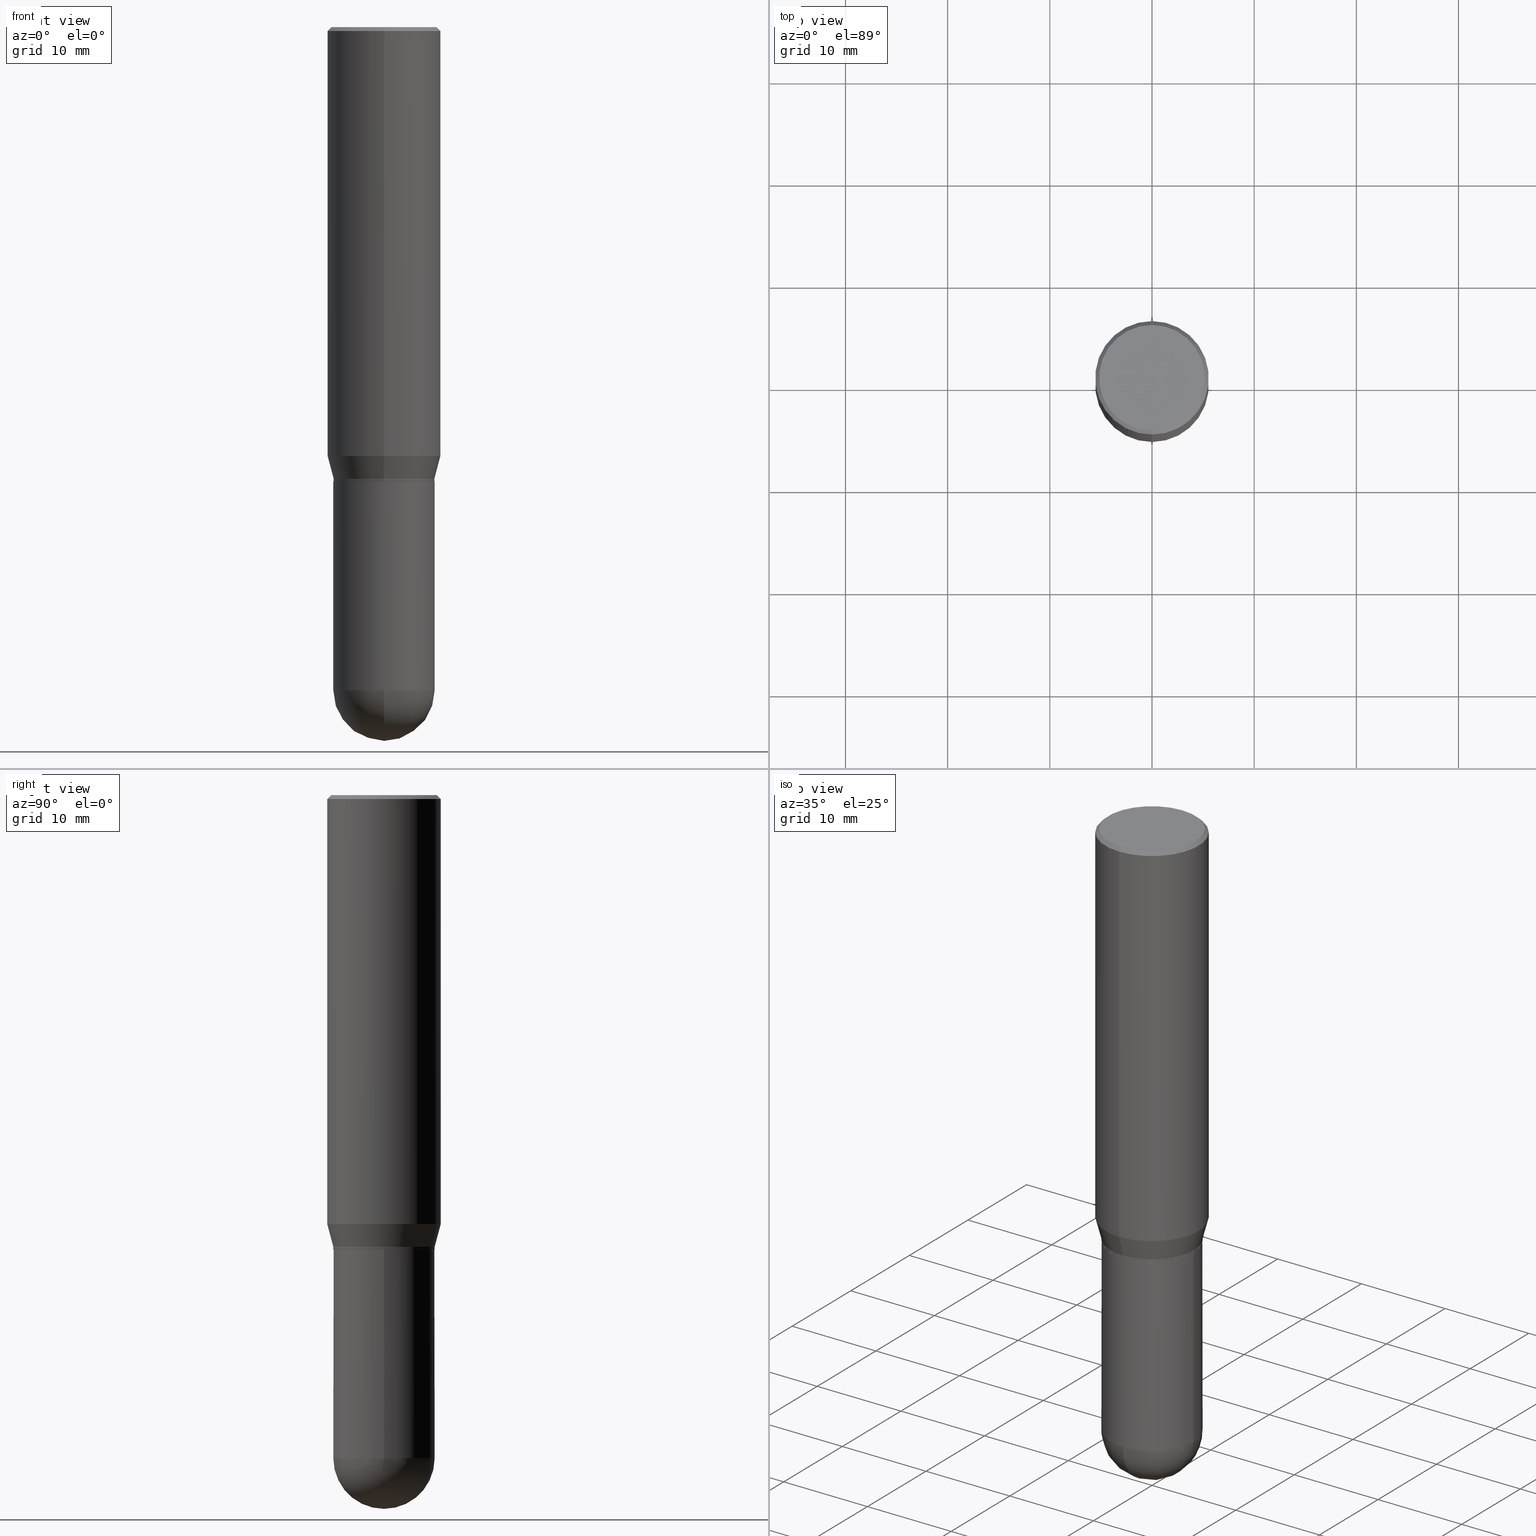
[diagram: canonical four-view strip — front | top / right | iso, engineering-drawing reading convention]
A machine part, canonical four-view strip (front | top / right | iso — engineering-drawing reading convention). The complete STEP part file that produces these views, byte-faithful:
ISO-10303-21;
HEADER;
FILE_DESCRIPTION (( 'STEP AP203' ),
    '1' );
FILE_NAME ('30495.STEP',
    '2024-03-08T15:27:21',
    ( '' ),
    ( '' ),
    'SwSTEP 2.0',
    'SolidWorks 2023',
    '' );
FILE_SCHEMA (( 'CONFIG_CONTROL_DESIGN' ));
ENDSEC;

DATA;
#1 = ORIENTED_EDGE ( 'NONE', *, *, #378, .T. ) ;
#2 = CARTESIAN_POINT ( 'NONE',  ( 4.279500515677457004E-29, -6.110192436803521757E-15, -1.750000000000000000 ) ) ;
#3 = ORIENTED_EDGE ( 'NONE', *, *, #456, .T. ) ;
#4 = DIRECTION ( 'NONE',  ( -2.445428866101404443E-29, 3.491538535316298316E-15, 1.000000000000000000 ) ) ;
#5 = CARTESIAN_POINT ( 'NONE',  ( 0.000000000000000000, 0.000000000000000000, 0.000000000000000000 ) ) ;
#6 = LINE ( 'NONE', #323, #494 ) ;
#7 = CIRCLE ( 'NONE', #188, 0.1948000000000000287 ) ;
#8 = ORIENTED_EDGE ( 'NONE', *, *, #237, .F. ) ;
#9 = CARTESIAN_POINT ( 'NONE',  ( 4.279570410823988484E-29, -6.110092342975504671E-15, -1.750000000000000000 ) ) ;
#10 = CARTESIAN_POINT ( 'NONE',  ( -1.363772610952084702E-15, -0.1953000000000059688, -1.739999999999999547 ) ) ;
#11 = ORIENTED_EDGE ( 'NONE', *, *, #91, .F. ) ;
#12 = LINE ( 'NONE', #368, #93 ) ;
#13 = EDGE_CURVE ( 'NONE', #433, #212, #389, .T. ) ;
#14 = CARTESIAN_POINT ( 'NONE',  ( 4.278277801244407626E-29, -6.108446667535864278E-15, -1.749500000000000055 ) ) ;
#15 = ORIENTED_EDGE ( 'NONE', *, *, #348, .F. ) ;
#16 = ORGANIZATION ( 'UNSPECIFIED', 'UNSPECIFIED', '' ) ;
#17 = AXIS2_PLACEMENT_3D ( 'NONE', #477, #331, #291 ) ;
#18 = CARTESIAN_POINT ( 'NONE',  ( 0.000000000000000000, 0.000000000000000000, 0.000000000000000000 ) ) ;
#19 = DIRECTION ( 'NONE',  ( -4.937700262164715281E-15, -0.7071067811865691111, 0.7071067811865257013 ) ) ;
#20 = ADVANCED_FACE ( 'NONE', ( #328 ), #53, .T. ) ;
#21 = ORIENTED_EDGE ( 'NONE', *, *, #136, .T. ) ;
#22 = PLANE ( 'NONE',  #462 ) ;
#23 = CARTESIAN_POINT ( 'NONE',  ( -0.1953000000000000291, -6.127199896719567549E-15, -1.750000000000000000 ) ) ;
#24 = EDGE_CURVE ( 'NONE', #320, #435, #260, .T. ) ;
#25 = DIRECTION ( 'NONE',  ( -7.105427357601001070E-15, -1.000000000000000000, 0.000000000000000000 ) ) ;
#26 = PERSON_AND_ORGANIZATION ( #275, #16 ) ;
#27 = CYLINDRICAL_SURFACE ( 'NONE', #461, 0.1952999999999999181 ) ;
#28 = DIRECTION ( 'NONE',  ( -2.445428866101404443E-29, 3.491538535316298316E-15, 1.000000000000000000 ) ) ;
#29 = PRODUCT ( '30495', '30495', '', ( #202 ) ) ;
#30 = FACE_OUTER_BOUND ( 'NONE', #284, .T. ) ;
#31 = APPROVAL_ROLE ( '' ) ;
#32 = CIRCLE ( 'NONE', #396, 0.1953000000000000569 ) ;
#33 = CARTESIAN_POINT ( 'NONE',  ( 6.252116918762979989E-29, -8.912988558351247541E-15, -2.554699999999999971 ) ) ;
#34 = EDGE_CURVE ( 'NONE', #212, #363, #67, .T. ) ;
#35 = ORIENTED_EDGE ( 'NONE', *, *, #411, .T. ) ;
#36 = DIRECTION ( 'NONE',  ( -2.445428866101404443E-29, 3.491538535316298316E-15, 1.000000000000000000 ) ) ;
#37 = VERTEX_POINT ( 'NONE', #159 ) ;
#38 = AXIS2_PLACEMENT_3D ( 'NONE', #2, #282, #245 ) ;
#39 = EDGE_CURVE ( 'NONE', #480, #177, #12, .T. ) ;
#40 = AXIS2_PLACEMENT_3D ( 'NONE', #9, #49, #131 ) ;
#41 = ORIENTED_EDGE ( 'NONE', *, *, #411, .F. ) ;
#42 = DIRECTION ( 'NONE',  ( 1.839019923739601499E-15, 0.2588190451025251249, 0.9659258262890670910 ) ) ;
#43 = DIRECTION ( 'NONE',  ( 6.982962677686265133E-15, 1.000000000000000000, -3.492862791899308071E-15 ) ) ;
#44 = ORIENTED_EDGE ( 'NONE', *, *, #336, .F. ) ;
#45 = ORIENTED_EDGE ( 'NONE', *, *, #116, .T. ) ;
#46 = CARTESIAN_POINT ( 'NONE',  ( 1.387689962939474884E-15, 0.1952999999999999181, -6.818974759472728110E-16 ) ) ;
#47 = CARTESIAN_POINT ( 'NONE',  ( 6.738067675424772833E-29, -9.582916187833640258E-15, -2.750000000000000000 ) ) ;
#48 = AXIS2_PLACEMENT_3D ( 'NONE', #142, #112, #301 ) ;
#49 = DIRECTION ( 'NONE',  ( -2.445468806185136597E-29, 3.491481338843145583E-15, 1.000000000000000000 ) ) ;
#50 = EDGE_CURVE ( 'NONE', #212, #433, #380, .T. ) ;
#51 = PRODUCT_DEFINITION ( 'UNKNOWN', '', #369, #129 ) ;
#52 = ORIENTED_EDGE ( 'NONE', *, *, #296, .F. ) ;
#53 = CYLINDRICAL_SURFACE ( 'NONE', #145, 0.1953000000000000291 ) ;
#54 = VECTOR ( 'NONE', #158, 39.37007874015748143 ) ;
#55 = DIRECTION ( 'NONE',  ( 6.982962677686265922E-15, 1.000000000000000000, -3.491538535316297921E-15 ) ) ;
#56 = AXIS2_PLACEMENT_3D ( 'NONE', #488, #78, #358 ) ;
#57 = AXIS2_PLACEMENT_3D ( 'NONE', #88, #256, #327 ) ;
#58 = CARTESIAN_POINT ( 'NONE',  ( -1.363772610952085885E-15, -0.1953000000000062186, -1.749499999999999389 ) ) ;
#59 = DIRECTION ( 'NONE',  ( 2.445428866101404443E-29, -3.491538535316298316E-15, -1.000000000000000000 ) ) ;
#60 = DIRECTION ( 'NONE',  ( -1.000000000000000000, 6.982962677686265922E-15, -4.876176775795935793E-29 ) ) ;
#61 = APPROVAL_PERSON_ORGANIZATION ( #493, #200, #151 ) ;
#62 = EDGE_CURVE ( 'NONE', #288, #221, #70, .T. ) ;
#63 = PERSON_AND_ORGANIZATION ( #275, #16 ) ;
#64 = CARTESIAN_POINT ( 'NONE',  ( 0.000000000000000000, 0.000000000000000000, 0.000000000000000000 ) ) ;
#65 = DIRECTION ( 'NONE',  ( 0.000000000000000000, 0.000000000000000000, 1.000000000000000000 ) ) ;
#66 = EDGE_CURVE ( 'NONE', #435, #320, #463, .T. ) ;
#67 = LINE ( 'NONE', #506, #317 ) ;
#68 = FACE_OUTER_BOUND ( 'NONE', #412, .T. ) ;
#69 = AXIS2_PLACEMENT_3D ( 'NONE', #257, #385, #150 ) ;
#70 = CIRCLE ( 'NONE', #17, 0.1953000000000000291 ) ;
#71 = SECURITY_CLASSIFICATION ( '', '', #311 ) ;
#72 = ORIENTED_EDGE ( 'NONE', *, *, #192, .F. ) ;
#73 = ORIENTED_EDGE ( 'NONE', *, *, #164, .T. ) ;
#74 = LENGTH_MEASURE_WITH_UNIT ( LENGTH_MEASURE( 0.02539999999999999897 ), #272 );
#75 = CARTESIAN_POINT ( 'NONE',  ( 0.1953000000000000291, -1.363772610952128089E-15, 9.523173243129463579E-30 ) ) ;
#76 = EDGE_CURVE ( 'NONE', #242, #177, #346, .T. ) ;
#77 = ORIENTED_EDGE ( 'NONE', *, *, #290, .F. ) ;
#78 = DIRECTION ( 'NONE',  ( -2.445428866101404443E-29, 3.491538535316298316E-15, 1.000000000000000000 ) ) ;
#79 = LINE ( 'NONE', #46, #264 ) ;
#80 = CC_DESIGN_DATE_AND_TIME_ASSIGNMENT ( #376, #190, ( #51 ) ) ;
#81 = LOCAL_TIME ( 10, 27, 21.00000000000000000, #233 ) ;
#82 = CLOSED_SHELL ( 'NONE', ( #309, #234, #170, #485, #20 ) ) ;
#83 = EDGE_LOOP ( 'NONE', ( #97, #468, #476, #100 ) ) ;
#84 = DIRECTION ( 'NONE',  ( -6.982962677686265922E-15, -1.000000000000000000, 2.797591391361253165E-15 ) ) ;
#85 = CYLINDRICAL_SURFACE ( 'NONE', #120, 0.1952999999999999181 ) ;
#86 = DIRECTION ( 'NONE',  ( 4.937700262164548831E-15, 0.7071067811865452413, -0.7071067811865497932 ) ) ;
#87 = ORIENTED_EDGE ( 'NONE', *, *, #438, .T. ) ;
#88 = CARTESIAN_POINT ( 'NONE',  ( 4.255046227016444789E-29, -6.075277051450358762E-15, -1.739999999999999991 ) ) ;
#89 = DIRECTION ( 'NONE',  ( -4.851104656540965064E-15, -0.7071067811865501263, -0.7071067811865449082 ) ) ;
#90 = ORIENTED_EDGE ( 'NONE', *, *, #34, .T. ) ;
#91 = EDGE_CURVE ( 'NONE', #168, #433, #183, .T. ) ;
#92 = DIRECTION ( 'NONE',  ( -6.982962677686265133E-15, -1.000000000000000000, 3.491538535316298316E-15 ) ) ;
#93 = VECTOR ( 'NONE', #261, 39.37007874015748143 ) ;
#94 = DIRECTION ( 'NONE',  ( -2.445428866101404443E-29, 3.491538535316298316E-15, 1.000000000000000000 ) ) ;
#95 = CC_DESIGN_PERSON_AND_ORGANIZATION_ASSIGNMENT ( #26, #194, ( #51 ) ) ;
#96 = ORIENTED_EDGE ( 'NONE', *, *, #192, .T. ) ;
#97 = ORIENTED_EDGE ( 'NONE', *, *, #66, .F. ) ;
#98 = LINE ( 'NONE', #371, #231 ) ;
#99 = CARTESIAN_POINT ( 'NONE',  ( 4.041030628052402903E-29, -5.769709499966830493E-15, -1.652483408562509748 ) ) ;
#100 = ORIENTED_EDGE ( 'NONE', *, *, #250, .F. ) ;
#101 = CYLINDRICAL_SURFACE ( 'NONE', #209, 0.2187500000000000000 ) ;
#102 = COORDINATED_UNIVERSAL_TIME_OFFSET ( 5, 0, .BEHIND. ) ;
#103 = DIRECTION ( 'NONE',  ( -2.445428866101404443E-29, 3.491538535316297921E-15, 1.000000000000000000 ) ) ;
#104 = MANIFOLD_SOLID_BREP ( 'Body-Move/Copy2[1]', #82 ) ;
#105 = EDGE_CURVE ( 'NONE', #126, #324, #370, .T. ) ;
#106 = CARTESIAN_POINT ( 'NONE',  ( 1.387689962939516891E-15, 0.1952999999999937009, -1.749500000000000499 ) ) ;
#107 = CARTESIAN_POINT ( 'NONE',  ( 1.384137249260717767E-15, 0.1947999999999939225, -1.750000000000000444 ) ) ;
#108 = APPROVAL_ROLE ( '' ) ;
#109 = AXIS2_PLACEMENT_3D ( 'NONE', #140, #382, #193 ) ;
#110 = LOCAL_TIME ( 10, 27, 21.00000000000000000, #199 ) ;
#111 = CYLINDRICAL_SURFACE ( 'NONE', #434, 0.1953000000000000291 ) ;
#112 = DIRECTION ( 'NONE',  ( -2.445428866101404443E-29, 3.491538535316298316E-15, 1.000000000000000000 ) ) ;
#113 = ADVANCED_FACE ( 'NONE', ( #401 ), #286, .T. ) ;
#114 = CARTESIAN_POINT ( 'NONE',  ( 3.668143299152134304E-31, -5.237307802974486843E-17, -0.01500000000000011394 ) ) ;
#115 = APPROVAL_DATE_TIME ( #464, #200 ) ;
#116 = EDGE_CURVE ( 'NONE', #168, #508, #425, .T. ) ;
#117 = CALENDAR_DATE ( 2024, 8, 3 ) ;
#118 = CARTESIAN_POINT ( 'NONE',  ( 6.247439159161168638E-29, -8.919687376342582955E-15, -2.554699999999999971 ) ) ;
#119 = CARTESIAN_POINT ( 'NONE',  ( 1.385913606100117822E-15, 0.1947999999999939225, -1.750000000000000444 ) ) ;
#120 = AXIS2_PLACEMENT_3D ( 'NONE', #5, #169, #325 ) ;
#121 = VERTEX_POINT ( 'NONE', #440 ) ;
#122 = ADVANCED_FACE ( 'NONE', ( #173 ), #146, .T. ) ;
#123 = ORIENTED_EDGE ( 'NONE', *, *, #206, .F. ) ;
#124 = ADVANCED_FACE ( 'NONE', ( #481 ), #204, .T. ) ;
#125 = APPLICATION_CONTEXT ( 'configuration controlled 3d designs of mechanical parts and assemblies' ) ;
#126 = VERTEX_POINT ( 'NONE', #418 ) ;
#127 = ADVANCED_BREP_SHAPE_REPRESENTATION ( '30495', ( #104, #436, #163 ), #217 ) ;
#128 = AXIS2_PLACEMENT_3D ( 'NONE', #160, #59, #377 ) ;
#129 = DESIGN_CONTEXT ( 'detailed design', #125, 'design' ) ;
#130 = VERTEX_POINT ( 'NONE', #263 ) ;
#131 = DIRECTION ( 'NONE',  ( 1.000000000000000000, -6.982962677686267499E-15, 0.000000000000000000 ) ) ;
#132 = CARTESIAN_POINT ( 'NONE',  ( 1.554312234475259191E-15, 0.2187499999999998890, -0.01500000000000087721 ) ) ;
#133 = ORIENTED_EDGE ( 'NONE', *, *, #62, .F. ) ;
#134 = AXIS2_PLACEMENT_3D ( 'NONE', #99, #340, #297 ) ;
#135 = LOCAL_TIME ( 10, 27, 21.00000000000000000, #144 ) ;
#136 = EDGE_CURVE ( 'NONE', #288, #121, #373, .T. ) ;
#137 = VERTEX_POINT ( 'NONE', #375 ) ;
#138 = CARTESIAN_POINT ( 'NONE',  ( 4.279500515677457004E-29, -6.110192436803521757E-15, -1.750000000000000000 ) ) ;
#139 = DIRECTION ( 'NONE',  ( -6.982962677686266711E-15, -1.000000000000000000, 2.804772067417107719E-15 ) ) ;
#140 = CARTESIAN_POINT ( 'NONE',  ( 6.247439159161168638E-29, -8.919687376342582955E-15, -2.554699999999999971 ) ) ;
#141 = EDGE_LOOP ( 'NONE', ( #391, #255, #399, #15 ) ) ;
#142 = CARTESIAN_POINT ( 'NONE',  ( 4.279500515677457004E-29, -6.110192436803521757E-15, -1.750000000000000000 ) ) ;
#143 = PLANE ( 'NONE',  #247 ) ;
#144 = COORDINATED_UNIVERSAL_TIME_OFFSET ( 5, 0, .BEHIND. ) ;
#145 = AXIS2_PLACEMENT_3D ( 'NONE', #18, #337, #289 ) ;
#146 = CONICAL_SURFACE ( 'NONE', #57, 0.1952999999999998904, 0.2617993877991504625 ) ;
#147 = CARTESIAN_POINT ( 'NONE',  ( 1.554312234475218762E-15, 0.2187500000000000000, -7.637740546004402196E-16 ) ) ;
#148 = CARTESIAN_POINT ( 'NONE',  ( 4.279500515677457004E-29, -6.110192436803521757E-15, -1.750000000000000000 ) ) ;
#149 = DIRECTION ( 'NONE',  ( -6.982962677686265133E-15, -1.000000000000000000, 3.746534391310989557E-15 ) ) ;
#150 = DIRECTION ( 'NONE',  ( -6.982962677686265133E-15, -1.000000000000000000, 3.492862791899308071E-15 ) ) ;
#151 = APPROVAL_ROLE ( '' ) ;
#152 = AXIS2_PLACEMENT_3D ( 'NONE', #362, #509, #43 ) ;
#153 = CARTESIAN_POINT ( 'NONE',  ( -1.527523085743870449E-15, -0.2187500000000000000, 7.637740546004402196E-16 ) ) ;
#154 = COORDINATED_UNIVERSAL_TIME_OFFSET ( 5, 0, .BEHIND. ) ;
#155 = AXIS2_PLACEMENT_3D ( 'NONE', #338, #184, #25 ) ;
#156 = FACE_OUTER_BOUND ( 'NONE', #431, .T. ) ;
#157 = AXIS2_PLACEMENT_3D ( 'NONE', #343, #492, #187 ) ;
#158 = DIRECTION ( 'NONE',  ( -2.445428866101404162E-29, 3.491538535316297921E-15, 1.000000000000000000 ) ) ;
#159 = CARTESIAN_POINT ( 'NONE',  ( -1.527523085743830414E-15, -0.2187500000000058009, -1.652483408562509082 ) ) ;
#160 = CARTESIAN_POINT ( 'NONE',  ( 3.668143299152134304E-31, -5.237307802974486843E-17, -0.01500000000000011394 ) ) ;
#161 = ORIENTED_EDGE ( 'NONE', *, *, #378, .F. ) ;
#162 = APPLICATION_CONTEXT ( 'configuration controlled 3d designs of mechanical parts and assemblies' ) ;
#163 = AXIS2_PLACEMENT_3D ( 'NONE', #271, #65, #383 ) ;
#164 = EDGE_CURVE ( 'NONE', #121, #137, #254, .T. ) ;
#165 = ORIENTED_EDGE ( 'NONE', *, *, #483, .F. ) ;
#166 = DIRECTION ( 'NONE',  ( -2.445468806185136877E-29, 3.491481338843145188E-15, 1.000000000000000000 ) ) ;
#167 = ORIENTED_EDGE ( 'NONE', *, *, #197, .T. ) ;
#168 = VERTEX_POINT ( 'NONE', #58 ) ;
#169 = DIRECTION ( 'NONE',  ( -2.445428866101404443E-29, 3.491538535316298316E-15, 1.000000000000000000 ) ) ;
#170 = ADVANCED_FACE ( 'NONE', ( #339 ), #143, .F. ) ;
#171 = AXIS2_PLACEMENT_3D ( 'NONE', #420, #448, #270 ) ;
#172 = ORIENTED_EDGE ( 'NONE', *, *, #483, .T. ) ;
#173 = FACE_OUTER_BOUND ( 'NONE', #224, .T. ) ;
#174 = CARTESIAN_POINT ( 'NONE',  ( 4.041030628052402903E-29, -5.769709499966830493E-15, -1.652483408562509748 ) ) ;
#175 = CC_DESIGN_PERSON_AND_ORGANIZATION_ASSIGNMENT ( #240, #344, ( #369 ) ) ;
#176 = DIRECTION ( 'NONE',  ( -6.982962677686266711E-15, -1.000000000000000000, 2.797591391361254348E-15 ) ) ;
#177 = VERTEX_POINT ( 'NONE', #23 ) ;
#178 = ADVANCED_FACE ( 'NONE', ( #457 ), #189, .F. ) ;
#179 = VECTOR ( 'NONE', #306, 39.37007874015748143 ) ;
#180 = CIRCLE ( 'NONE', #398, 0.1952999999999999736 ) ;
#181 = CC_DESIGN_APPROVAL ( #200, ( #369 ) ) ;
#182 = ADVANCED_FACE ( 'NONE', ( #232 ), #27, .T. ) ;
#183 = LINE ( 'NONE', #335, #333 ) ;
#184 = DIRECTION ( 'NONE',  ( -1.000000000000000000, 7.105427357601001070E-15, -4.926315508542082329E-29 ) ) ;
#185 = ORIENTED_EDGE ( 'NONE', *, *, #305, .F. ) ;
#186 = CARTESIAN_POINT ( 'NONE',  ( 4.278277801244407626E-29, -6.108446667535864278E-15, -1.749500000000000055 ) ) ;
#187 = DIRECTION ( 'NONE',  ( 1.000000000000000000, -6.982962677686266711E-15, 0.000000000000000000 ) ) ;
#188 = AXIS2_PLACEMENT_3D ( 'NONE', #228, #36, #139 ) ;
#189 = PLANE ( 'NONE',  #487 ) ;
#190 = DATE_TIME_ROLE ( 'creation_date' ) ;
#191 = LINE ( 'NONE', #147, #179 ) ;
#192 = EDGE_CURVE ( 'NONE', #37, #363, #470, .T. ) ;
#193 = DIRECTION ( 'NONE',  ( 1.000000000000000000, -6.982962677686266711E-15, 0.000000000000000000 ) ) ;
#194 = PERSON_AND_ORGANIZATION_ROLE ( 'creator' ) ;
#195 = DIRECTION ( 'NONE',  ( -6.982962677686265922E-15, -1.000000000000000000, 3.491538535316297921E-15 ) ) ;
#196 = APPROVAL_DATE_TIME ( #386, #299 ) ;
#197 = EDGE_CURVE ( 'NONE', #324, #508, #295, .T. ) ;
#198 = DIRECTION ( 'NONE',  ( -2.445468806185136597E-29, 3.491481338843145583E-15, 1.000000000000000000 ) ) ;
#199 = COORDINATED_UNIVERSAL_TIME_OFFSET ( 5, 0, .BEHIND. ) ;
#200 = APPROVAL ( #342, 'UNSPECIFIED' ) ;
#201 = DIRECTION ( 'NONE',  ( -2.445428866101404443E-29, 3.491538535316298316E-15, 1.000000000000000000 ) ) ;
#202 = MECHANICAL_CONTEXT ( 'NONE', #162, 'mechanical' ) ;
#203 = DIRECTION ( 'NONE',  ( 1.000000000000000000, -6.982962677686266711E-15, 0.000000000000000000 ) ) ;
#204 = CONICAL_SURFACE ( 'NONE', #281, 0.1952999999999998904, 0.2617993877991504625 ) ;
#205 = ORIENTED_EDGE ( 'NONE', *, *, #13, .F. ) ;
#206 = EDGE_CURVE ( 'NONE', #137, #221, #310, .T. ) ;
#207 = ORIENTED_EDGE ( 'NONE', *, *, #164, .F. ) ;
#208 = DIRECTION ( 'NONE',  ( -6.982962677686265133E-15, -1.000000000000000000, 3.491538535316298316E-15 ) ) ;
#209 = AXIS2_PLACEMENT_3D ( 'NONE', #64, #387, #208 ) ;
#210 = CC_DESIGN_SECURITY_CLASSIFICATION ( #71, ( #369 ) ) ;
#211 = EDGE_CURVE ( 'NONE', #480, #121, #451, .T. ) ;
#212 = VERTEX_POINT ( 'NONE', #304 ) ;
#213 = EDGE_LOOP ( 'NONE', ( #227, #354, #73, #35, #77 ) ) ;
#214 = ADVANCED_FACE ( 'NONE', ( #498 ), #22, .F. ) ;
#215 = ORIENTED_EDGE ( 'NONE', *, *, #250, .T. ) ;
#216 = CARTESIAN_POINT ( 'NONE',  ( -1.449280202029235538E-15, -0.2037499999999999867, 5.993075674126653216E-16 ) ) ;
#217 =( GEOMETRIC_REPRESENTATION_CONTEXT ( 3 ) GLOBAL_UNCERTAINTY_ASSIGNED_CONTEXT ( ( #473 ) ) GLOBAL_UNIT_ASSIGNED_CONTEXT ( ( #243, #392, #478 ) ) REPRESENTATION_CONTEXT ( 'NONE', 'WORKASPACE' ) );
#218 = APPROVAL_PERSON_ORGANIZATION ( #63, #222, #31 ) ;
#219 = CARTESIAN_POINT ( 'NONE',  ( 4.255046227016444789E-29, -6.075277051450358762E-15, -1.739999999999999991 ) ) ;
#220 = DIRECTION ( 'NONE',  ( -2.445428866101404443E-29, 3.491538535316298316E-15, 1.000000000000000000 ) ) ;
#221 = VERTEX_POINT ( 'NONE', #307 ) ;
#222 = APPROVAL ( #239, 'UNSPECIFIED' ) ;
#223 = CARTESIAN_POINT ( 'NONE',  ( 4.255046227016444789E-29, -6.075277051450358762E-15, -1.739999999999999991 ) ) ;
#224 = EDGE_LOOP ( 'NONE', ( #512, #90, #72, #251 ) ) ;
#225 = VECTOR ( 'NONE', #479, 39.37007874015748854 ) ;
#226 = DIRECTION ( 'NONE',  ( -1.000000000000000000, 6.982962677686266711E-15, -4.883557194083112901E-29 ) ) ;
#227 = ORIENTED_EDGE ( 'NONE', *, *, #39, .F. ) ;
#228 = CARTESIAN_POINT ( 'NONE',  ( 4.279500515677457004E-29, -6.110192436803521757E-15, -1.750000000000000000 ) ) ;
#229 = DIRECTION ( 'NONE',  ( -6.982962677686266711E-15, -1.000000000000000000, 2.797591391361254348E-15 ) ) ;
#230 = DIRECTION ( 'NONE',  ( 6.982962677686266711E-15, 1.000000000000000000, -2.797591391361252376E-15 ) ) ;
#231 = VECTOR ( 'NONE', #19, 39.37007874015748854 ) ;
#232 = FACE_OUTER_BOUND ( 'NONE', #406, .T. ) ;
#233 = COORDINATED_UNIVERSAL_TIME_OFFSET ( 5, 0, .BEHIND. ) ;
#234 = ADVANCED_FACE ( 'NONE', ( #459 ), #450, .T. ) ;
#235 = DIRECTION ( 'NONE',  ( 2.438088387897960049E-29, -3.491481338843145188E-15, -1.000000000000000000 ) ) ;
#236 = PERSON_AND_ORGANIZATION ( #275, #16 ) ;
#237 = EDGE_CURVE ( 'NONE', #126, #168, #98, .T. ) ;
#238 = DIRECTION ( 'NONE',  ( -2.445428866101404443E-29, 3.491538535316298316E-15, 1.000000000000000000 ) ) ;
#239 = APPROVAL_STATUS ( 'not_yet_approved' ) ;
#240 = PERSON_AND_ORGANIZATION ( #275, #16 ) ;
#241 = CIRCLE ( 'NONE', #279, 0.1953000000000000291 ) ;
#242 = VERTEX_POINT ( 'NONE', #416 ) ;
#243 =( CONVERSION_BASED_UNIT ( 'INCH', #74 ) LENGTH_UNIT ( ) NAMED_UNIT ( #329 ) );
#244 = ORIENTED_EDGE ( 'NONE', *, *, #211, .F. ) ;
#245 = DIRECTION ( 'NONE',  ( -6.982962677686266711E-15, -1.000000000000000000, 2.804772067417107719E-15 ) ) ;
#246 = CC_DESIGN_PERSON_AND_ORGANIZATION_ASSIGNMENT ( #460, #501, ( #369 ) ) ;
#247 = AXIS2_PLACEMENT_3D ( 'NONE', #489, #235, #60 ) ;
#248 = ORIENTED_EDGE ( 'NONE', *, *, #507, .F. ) ;
#249 = CONICAL_SURFACE ( 'NONE', #128, 0.2187500000000000000, 0.7853981633974485010 ) ;
#250 = EDGE_CURVE ( 'NONE', #320, #449, #6, .T. ) ;
#251 = ORIENTED_EDGE ( 'NONE', *, *, #438, .F. ) ;
#252 = LINE ( 'NONE', #75, #345 ) ;
#253 = DIRECTION ( 'NONE',  ( 1.000000000000000000, -6.982962677686267499E-15, 0.000000000000000000 ) ) ;
#254 = CIRCLE ( 'NONE', #157, 0.1953000000000000569 ) ;
#255 = ORIENTED_EDGE ( 'NONE', *, *, #336, .T. ) ;
#256 = DIRECTION ( 'NONE',  ( -2.445428866101404443E-29, 3.491538535316298316E-15, 1.000000000000000000 ) ) ;
#257 = CARTESIAN_POINT ( 'NONE',  ( 3.668143299152134304E-31, -5.237307802974486843E-17, -0.01500000000000011394 ) ) ;
#258 = ORIENTED_EDGE ( 'NONE', *, *, #105, .T. ) ;
#259 = DIRECTION ( 'NONE',  ( -2.445428866101404162E-29, 3.491538535316297921E-15, 1.000000000000000000 ) ) ;
#260 = CIRCLE ( 'NONE', #56, 0.2037499999999999867 ) ;
#261 = DIRECTION ( 'NONE',  ( -2.445468806185136877E-29, 3.491481338843145188E-15, 1.000000000000000000 ) ) ;
#262 = DIRECTION ( 'NONE',  ( -2.445428866101404443E-29, 3.491538535316298316E-15, 1.000000000000000000 ) ) ;
#263 = CARTESIAN_POINT ( 'NONE',  ( -1.527523085743870054E-15, -0.2187500000000000555, -0.01499999999999934892 ) ) ;
#264 = VECTOR ( 'NONE', #409, 39.37007874015748143 ) ;
#265 = DIRECTION ( 'NONE',  ( 6.982962677686266711E-15, 1.000000000000000000, -2.797591391361252376E-15 ) ) ;
#266 = ORIENTED_EDGE ( 'NONE', *, *, #62, .T. ) ;
#267 = DIRECTION ( 'NONE',  ( 5.024295867788231995E-15, 0.7071067811865739960, 0.7071067811865208164 ) ) ;
#268 = APPLICATION_PROTOCOL_DEFINITION ( 'international standard', 'config_control_design', 1994, #125 ) ;
#269 = VECTOR ( 'NONE', #89, 39.37007874015748143 ) ;
#270 = DIRECTION ( 'NONE',  ( 1.000000000000000000, -6.982962677686266711E-15, 0.000000000000000000 ) ) ;
#271 = CARTESIAN_POINT ( 'NONE',  ( 0.000000000000000000, 0.000000000000000000, 0.000000000000000000 ) ) ;
#272 =( LENGTH_UNIT ( ) NAMED_UNIT ( * ) SI_UNIT ( $, .METRE. ) );
#273 = DATE_TIME_ROLE ( 'classification_date' ) ;
#274 = PERSON_AND_ORGANIZATION_ROLE ( 'classification_officer' ) ;
#275 = PERSON ( 'UNSPECIFIED', 'UNSPECIFIED', 'UNSPECIFIED', ('UNSPECIFIED'), ('UNSPECIFIED'), ('UNSPECIFIED') ) ;
#276 = DIRECTION ( 'NONE',  ( -2.445468806185136597E-29, 3.491481338843145583E-15, 1.000000000000000000 ) ) ;
#277 = EDGE_CURVE ( 'NONE', #449, #130, #422, .T. ) ;
#278 = ORIENTED_EDGE ( 'NONE', *, *, #456, .F. ) ;
#279 = AXIS2_PLACEMENT_3D ( 'NONE', #287, #276, #253 ) ;
#280 = ORIENTED_EDGE ( 'NONE', *, *, #507, .T. ) ;
#281 = AXIS2_PLACEMENT_3D ( 'NONE', #219, #366, #229 ) ;
#282 = DIRECTION ( 'NONE',  ( -2.445428866101404443E-29, 3.491538535316298316E-15, 1.000000000000000000 ) ) ;
#283 = ORIENTED_EDGE ( 'NONE', *, *, #66, .T. ) ;
#284 = EDGE_LOOP ( 'NONE', ( #172, #285, #491, #41, #372 ) ) ;
#285 = ORIENTED_EDGE ( 'NONE', *, *, #39, .T. ) ;
#286 = CYLINDRICAL_SURFACE ( 'NONE', #334, 0.2187500000000000000 ) ;
#287 = CARTESIAN_POINT ( 'NONE',  ( 4.279570410823988484E-29, -6.110092342975504671E-15, -1.750000000000000000 ) ) ;
#288 = VERTEX_POINT ( 'NONE', #47 ) ;
#289 = DIRECTION ( 'NONE',  ( 1.000000000000000000, -6.982962677686266711E-15, 4.876176775795935793E-29 ) ) ;
#290 = EDGE_CURVE ( 'NONE', #177, #242, #241, .T. ) ;
#291 = DIRECTION ( 'NONE',  ( 6.982962677686266711E-15, 1.000000000000000000, 0.000000000000000000 ) ) ;
#292 = LOCAL_TIME ( 10, 27, 21.00000000000000000, #154 ) ;
#293 = AXIS2_PLACEMENT_3D ( 'NONE', #223, #413, #443 ) ;
#294 = EDGE_LOOP ( 'NONE', ( #397, #44 ) ) ;
#295 = LINE ( 'NONE', #107, #388 ) ;
#296 = EDGE_CURVE ( 'NONE', #435, #130, #402, .T. ) ;
#297 = DIRECTION ( 'NONE',  ( -6.982962677686265133E-15, -1.000000000000000000, 3.746534391310989557E-15 ) ) ;
#298 = EDGE_LOOP ( 'NONE', ( #330, #442, #87, #278 ) ) ;
#299 = APPROVAL ( #421, 'UNSPECIFIED' ) ;
#300 = CONICAL_SURFACE ( 'NONE', #48, 0.1948000000000000287, 0.7853981633974824739 ) ;
#301 = DIRECTION ( 'NONE',  ( -6.982962677686266711E-15, -1.000000000000000000, 2.804772067417107719E-15 ) ) ;
#302 = CLOSED_SHELL ( 'NONE', ( #444, #351, #395, #353, #122, #124, #113, #490, #178, #214, #432, #182 ) ) ;
#303 = DATE_AND_TIME ( #308, #135 ) ;
#304 = CARTESIAN_POINT ( 'NONE',  ( 1.471001098707388140E-15, 0.1952999999999938119, -1.740000000000000657 ) ) ;
#305 = EDGE_CURVE ( 'NONE', #130, #449, #475, .T. ) ;
#306 = DIRECTION ( 'NONE',  ( -2.445428866101404162E-29, 3.491538535316297921E-15, 1.000000000000000000 ) ) ;
#307 = CARTESIAN_POINT ( 'NONE',  ( 1.363772610952190606E-15, 0.1952999999999911473, -2.554700000000000415 ) ) ;
#308 = CALENDAR_DATE ( 2024, 8, 3 ) ;
#309 = ADVANCED_FACE ( 'NONE', ( #30 ), #111, .T. ) ;
#310 = CIRCLE ( 'NONE', #171, 0.1953000000000000569 ) ;
#311 = SECURITY_CLASSIFICATION_LEVEL ( 'unclassified' ) ;
#312 = AXIS2_PLACEMENT_3D ( 'NONE', #138, #94, #407 ) ;
#313 = DIRECTION ( 'NONE',  ( -2.445468806185136597E-29, 3.491481338843145583E-15, 1.000000000000000000 ) ) ;
#314 = PERSON_AND_ORGANIZATION ( #275, #16 ) ;
#315 = ORIENTED_EDGE ( 'NONE', *, *, #76, .T. ) ;
#316 = AXIS2_PLACEMENT_3D ( 'NONE', #415, #226, #265 ) ;
#317 = VECTOR ( 'NONE', #42, 39.37007874015748854 ) ;
#318 = ORIENTED_EDGE ( 'NONE', *, *, #277, .F. ) ;
#319 = EDGE_CURVE ( 'NONE', #37, #130, #503, .T. ) ;
#320 = VERTEX_POINT ( 'NONE', #430 ) ;
#321 = PRODUCT_RELATED_PRODUCT_CATEGORY ( 'detail', '', ( #29 ) ) ;
#322 = FACE_OUTER_BOUND ( 'NONE', #474, .T. ) ;
#323 = CARTESIAN_POINT ( 'NONE',  ( 1.527523085743871040E-15, 0.2187499999999999167, -0.01500000000000087721 ) ) ;
#324 = VERTEX_POINT ( 'NONE', #119 ) ;
#325 = DIRECTION ( 'NONE',  ( -6.982962677686266711E-15, -1.000000000000000000, 3.491538535316298316E-15 ) ) ;
#326 = ORIENTED_EDGE ( 'NONE', *, *, #348, .T. ) ;
#327 = DIRECTION ( 'NONE',  ( -6.982962677686266711E-15, -1.000000000000000000, 2.797591391361254348E-15 ) ) ;
#328 = FACE_OUTER_BOUND ( 'NONE', #213, .T. ) ;
#329 = DIMENSIONAL_EXPONENTS ( 1.000000000000000000, 0.000000000000000000, 0.000000000000000000, 0.000000000000000000, 0.000000000000000000, 0.000000000000000000, 0.000000000000000000 ) ;
#330 = ORIENTED_EDGE ( 'NONE', *, *, #34, .F. ) ;
#331 = DIRECTION ( 'NONE',  ( 1.000000000000000000, -6.982962677686265922E-15, 4.883557194083112340E-29 ) ) ;
#332 = CIRCLE ( 'NONE', #408, 0.2187500000000000000 ) ;
#333 = VECTOR ( 'NONE', #259, 39.37007874015748143 ) ;
#334 = AXIS2_PLACEMENT_3D ( 'NONE', #410, #220, #404 ) ;
#335 = CARTESIAN_POINT ( 'NONE',  ( -1.363772610952127300E-15, -0.1952999999999999181, 6.818974759472728110E-16 ) ) ;
#336 = EDGE_CURVE ( 'NONE', #324, #126, #7, .T. ) ;
#337 = DIRECTION ( 'NONE',  ( -2.445468806185136597E-29, 3.491481338843145583E-15, 1.000000000000000000 ) ) ;
#338 = CARTESIAN_POINT ( 'NONE',  ( 6.252116918762979989E-29, -8.912988558351247541E-15, -2.554699999999999971 ) ) ;
#339 = FACE_OUTER_BOUND ( 'NONE', #445, .T. ) ;
#340 = DIRECTION ( 'NONE',  ( -2.445428866101404443E-29, 3.491538535316298316E-15, 1.000000000000000000 ) ) ;
#341 = CARTESIAN_POINT ( 'NONE',  ( 1.422778645578576487E-15, 0.2037499999999999867, -7.674476811497108312E-16 ) ) ;
#342 = APPROVAL_STATUS ( 'not_yet_approved' ) ;
#343 = CARTESIAN_POINT ( 'NONE',  ( 6.247439159161168638E-29, -8.919687376342582955E-15, -2.554699999999999971 ) ) ;
#344 = PERSON_AND_ORGANIZATION_ROLE ( 'creator' ) ;
#345 = VECTOR ( 'NONE', #166, 39.37007874015748143 ) ;
#346 = CIRCLE ( 'NONE', #40, 0.1953000000000000291 ) ;
#347 = DIRECTION ( 'NONE',  ( 1.000000000000000000, -6.982962677686266711E-15, 4.876176775795935793E-29 ) ) ;
#348 = EDGE_CURVE ( 'NONE', #508, #168, #180, .T. ) ;
#349 = APPROVAL_DATE_TIME ( #466, #222 ) ;
#350 = DIRECTION ( 'NONE',  ( -1.000000000000000000, 6.982962677686266711E-15, -4.883557194083112901E-29 ) ) ;
#351 = ADVANCED_FACE ( 'NONE', ( #156 ), #300, .T. ) ;
#352 = EDGE_LOOP ( 'NONE', ( #133, #21, #244, #165 ) ) ;
#353 = ADVANCED_FACE ( 'NONE', ( #455 ), #101, .T. ) ;
#354 = ORIENTED_EDGE ( 'NONE', *, *, #211, .T. ) ;
#355 = LOCAL_TIME ( 10, 27, 21.00000000000000000, #102 ) ;
#356 = CC_DESIGN_APPROVAL ( #222, ( #71 ) ) ;
#357 = ORIENTED_EDGE ( 'NONE', *, *, #319, .F. ) ;
#358 = DIRECTION ( 'NONE',  ( -6.982962677686265133E-15, -1.000000000000000000, 3.491538535316298316E-15 ) ) ;
#359 = FACE_OUTER_BOUND ( 'NONE', #83, .T. ) ;
#360 = EDGE_LOOP ( 'NONE', ( #96, #280, #185, #357 ) ) ;
#361 = CARTESIAN_POINT ( 'NONE',  ( 2.741164584547628974E-45, -3.913784576302397328E-31, -1.120934091580303315E-16 ) ) ;
#362 = CARTESIAN_POINT ( 'NONE',  ( 3.668143299152134304E-31, -5.237307802974486843E-17, -0.01500000000000011394 ) ) ;
#363 = VERTEX_POINT ( 'NONE', #405 ) ;
#364 = AXIS2_PLACEMENT_3D ( 'NONE', #33, #350, #230 ) ;
#365 = LINE ( 'NONE', #10, #225 ) ;
#366 = DIRECTION ( 'NONE',  ( -2.445428866101404443E-29, 3.491538535316298316E-15, 1.000000000000000000 ) ) ;
#367 = ORIENTED_EDGE ( 'NONE', *, *, #24, .T. ) ;
#368 = CARTESIAN_POINT ( 'NONE',  ( -0.1953000000000000291, 1.387689962939475870E-15, -9.606680231267831797E-30 ) ) ;
#369 = PRODUCT_DEFINITION_FORMATION_WITH_SPECIFIED_SOURCE ( 'ANY', '', #29, .NOT_KNOWN. ) ;
#370 = CIRCLE ( 'NONE', #312, 0.1948000000000000287 ) ;
#371 = CARTESIAN_POINT ( 'NONE',  ( -1.360281129613242089E-15, -0.1948000000000061349, -1.749999999999999334 ) ) ;
#372 = ORIENTED_EDGE ( 'NONE', *, *, #206, .T. ) ;
#373 = CIRCLE ( 'NONE', #155, 0.1953000000000000291 ) ;
#374 = DIRECTION ( 'NONE',  ( -6.982962677686266711E-15, -1.000000000000000000, 3.491538535316298316E-15 ) ) ;
#375 = CARTESIAN_POINT ( 'NONE',  ( 0.1953000000000000569, -8.878662470611173282E-15, -2.554699999999999971 ) ) ;
#376 = DATE_AND_TIME ( #419, #292 ) ;
#377 = DIRECTION ( 'NONE',  ( 6.982962677686265133E-15, 1.000000000000000000, -3.492862791899308071E-15 ) ) ;
#378 = EDGE_CURVE ( 'NONE', #508, #212, #79, .T. ) ;
#379 = CONICAL_SURFACE ( 'NONE', #152, 0.2187500000000000000, 0.7853981633974485010 ) ;
#380 = CIRCLE ( 'NONE', #293, 0.1952999999999998904 ) ;
#381 = DIRECTION ( 'NONE',  ( -2.445428866101404443E-29, 3.491538535316298316E-15, 1.000000000000000000 ) ) ;
#382 = DIRECTION ( 'NONE',  ( -2.445468806185136597E-29, 3.491481338843145583E-15, 1.000000000000000000 ) ) ;
#383 = DIRECTION ( 'NONE',  ( 1.000000000000000000, 0.000000000000000000, 0.000000000000000000 ) ) ;
#384 = EDGE_LOOP ( 'NONE', ( #452, #266, #123, #207 ) ) ;
#385 = DIRECTION ( 'NONE',  ( -2.445428866101404443E-29, 3.491538535316298316E-15, 1.000000000000000000 ) ) ;
#386 = DATE_AND_TIME ( #424, #81 ) ;
#387 = DIRECTION ( 'NONE',  ( -2.445428866101404443E-29, 3.491538535316298316E-15, 1.000000000000000000 ) ) ;
#388 = VECTOR ( 'NONE', #267, 39.37007874015748854 ) ;
#389 = CIRCLE ( 'NONE', #453, 0.1952999999999998904 ) ;
#390 = SPHERICAL_SURFACE ( 'NONE', #364, 0.1953000000000000291 ) ;
#391 = ORIENTED_EDGE ( 'NONE', *, *, #197, .F. ) ;
#392 =( NAMED_UNIT ( * ) PLANE_ANGLE_UNIT ( ) SI_UNIT ( $, .RADIAN. ) );
#393 = ORIENTED_EDGE ( 'NONE', *, *, #50, .F. ) ;
#394 = CARTESIAN_POINT ( 'NONE',  ( -1.363772610952084702E-15, -0.1953000000000059688, -1.739999999999999547 ) ) ;
#395 = ADVANCED_FACE ( 'NONE', ( #359 ), #379, .T. ) ;
#396 = AXIS2_PLACEMENT_3D ( 'NONE', #118, #313, #203 ) ;
#397 = ORIENTED_EDGE ( 'NONE', *, *, #105, .F. ) ;
#398 = AXIS2_PLACEMENT_3D ( 'NONE', #186, #28, #465 ) ;
#399 = ORIENTED_EDGE ( 'NONE', *, *, #237, .T. ) ;
#400 = PRODUCT_DEFINITION_SHAPE ( 'NONE', 'NONE',  #51 ) ;
#401 = FACE_OUTER_BOUND ( 'NONE', #429, .T. ) ;
#402 = LINE ( 'NONE', #441, #269 ) ;
#403 = ORIENTED_EDGE ( 'NONE', *, *, #277, .T. ) ;
#404 = DIRECTION ( 'NONE',  ( -6.982962677686265133E-15, -1.000000000000000000, 3.491538535316298316E-15 ) ) ;
#405 = CARTESIAN_POINT ( 'NONE',  ( 1.554312234475258797E-15, 0.2187499999999941713, -1.652483408562510636 ) ) ;
#406 = EDGE_LOOP ( 'NONE', ( #161, #326, #484, #393 ) ) ;
#407 = DIRECTION ( 'NONE',  ( -6.982962677686266711E-15, -1.000000000000000000, 2.804772067417107719E-15 ) ) ;
#408 = AXIS2_PLACEMENT_3D ( 'NONE', #174, #201, #149 ) ;
#409 = DIRECTION ( 'NONE',  ( -2.445428866101404162E-29, 3.491538535316297921E-15, 1.000000000000000000 ) ) ;
#410 = CARTESIAN_POINT ( 'NONE',  ( 0.000000000000000000, 0.000000000000000000, 0.000000000000000000 ) ) ;
#411 = EDGE_CURVE ( 'NONE', #137, #242, #252, .T. ) ;
#412 = EDGE_LOOP ( 'NONE', ( #52, #417, #215, #403 ) ) ;
#413 = DIRECTION ( 'NONE',  ( -2.445428866101404443E-29, 3.491538535316298316E-15, 1.000000000000000000 ) ) ;
#414 = CC_DESIGN_DATE_AND_TIME_ASSIGNMENT ( #303, #273, ( #71 ) ) ;
#415 = CARTESIAN_POINT ( 'NONE',  ( 6.252116918762979989E-29, -8.912988558351247541E-15, -2.554699999999999971 ) ) ;
#416 = CARTESIAN_POINT ( 'NONE',  ( 0.1953000000000000291, -7.473864953927632957E-15, -1.750000000000000000 ) ) ;
#417 = ORIENTED_EDGE ( 'NONE', *, *, #24, .F. ) ;
#418 = CARTESIAN_POINT ( 'NONE',  ( -1.360281129613242089E-15, -0.1948000000000061349, -1.749999999999999334 ) ) ;
#419 = CALENDAR_DATE ( 2024, 8, 3 ) ;
#420 = CARTESIAN_POINT ( 'NONE',  ( 6.247439159161168638E-29, -8.919687376342582955E-15, -2.554699999999999971 ) ) ;
#421 = APPROVAL_STATUS ( 'not_yet_approved' ) ;
#422 = CIRCLE ( 'NONE', #502, 0.2187500000000000000 ) ;
#423 = AXIS2_PLACEMENT_3D ( 'NONE', #361, #4, #92 ) ;
#424 = CALENDAR_DATE ( 2024, 8, 3 ) ;
#425 = CIRCLE ( 'NONE', #447, 0.1952999999999999736 ) ;
#426 = CARTESIAN_POINT ( 'NONE',  ( 0.000000000000000000, 0.000000000000000000, 0.000000000000000000 ) ) ;
#427 = APPLICATION_PROTOCOL_DEFINITION ( 'international standard', 'config_control_design', 1994, #162 ) ;
#428 = APPROVAL_PERSON_ORGANIZATION ( #314, #299, #108 ) ;
#429 = EDGE_LOOP ( 'NONE', ( #248, #3, #454, #318 ) ) ;
#430 = CARTESIAN_POINT ( 'NONE',  ( 1.475150865661223764E-15, 0.2037499999999999867, -8.234943857287259354E-16 ) ) ;
#431 = EDGE_LOOP ( 'NONE', ( #258, #167, #482, #8 ) ) ;
#432 = ADVANCED_FACE ( 'NONE', ( #469 ), #486, .T. ) ;
#433 = VERTEX_POINT ( 'NONE', #394 ) ;
#434 = AXIS2_PLACEMENT_3D ( 'NONE', #426, #198, #347 ) ;
#435 = VERTEX_POINT ( 'NONE', #216 ) ;
#436 = MANIFOLD_SOLID_BREP ( 'Body-Move/Copy2[2]', #302 ) ;
#437 = DIRECTION ( 'NONE',  ( -2.445428866101404443E-29, 3.491538535316298316E-15, 1.000000000000000000 ) ) ;
#438 = EDGE_CURVE ( 'NONE', #433, #37, #365, .T. ) ;
#439 = EDGE_LOOP ( 'NONE', ( #367, #283 ) ) ;
#440 = CARTESIAN_POINT ( 'NONE',  ( -1.387689962939413353E-15, -0.1953000000000089664, -2.554699999999999527 ) ) ;
#441 = CARTESIAN_POINT ( 'NONE',  ( -1.500733937012521740E-15, -0.2187500000000000555, -0.01499999999999934892 ) ) ;
#442 = ORIENTED_EDGE ( 'NONE', *, *, #50, .T. ) ;
#443 = DIRECTION ( 'NONE',  ( -6.982962677686266711E-15, -1.000000000000000000, 2.797591391361254348E-15 ) ) ;
#444 = ADVANCED_FACE ( 'NONE', ( #322 ), #85, .T. ) ;
#445 = EDGE_LOOP ( 'NONE', ( #315, #471 ) ) ;
#446 = CARTESIAN_POINT ( 'NONE',  ( 4.255046227016444789E-29, -6.075277051450358762E-15, -1.739999999999999991 ) ) ;
#447 = AXIS2_PLACEMENT_3D ( 'NONE', #14, #437, #84 ) ;
#448 = DIRECTION ( 'NONE',  ( -2.445468806185136597E-29, 3.491481338843145583E-15, 1.000000000000000000 ) ) ;
#449 = VERTEX_POINT ( 'NONE', #132 ) ;
#450 = SPHERICAL_SURFACE ( 'NONE', #316, 0.1953000000000000291 ) ;
#451 = CIRCLE ( 'NONE', #109, 0.1953000000000000569 ) ;
#452 = ORIENTED_EDGE ( 'NONE', *, *, #136, .F. ) ;
#453 = AXIS2_PLACEMENT_3D ( 'NONE', #446, #262, #176 ) ;
#454 = ORIENTED_EDGE ( 'NONE', *, *, #319, .T. ) ;
#455 = FACE_OUTER_BOUND ( 'NONE', #360, .T. ) ;
#456 = EDGE_CURVE ( 'NONE', #363, #37, #332, .T. ) ;
#457 = FACE_OUTER_BOUND ( 'NONE', #439, .T. ) ;
#458 = PERSON_AND_ORGANIZATION ( #275, #16 ) ;
#459 = FACE_OUTER_BOUND ( 'NONE', #352, .T. ) ;
#460 = PERSON_AND_ORGANIZATION ( #275, #16 ) ;
#461 = AXIS2_PLACEMENT_3D ( 'NONE', #500, #381, #374 ) ;
#462 = AXIS2_PLACEMENT_3D ( 'NONE', #148, #103, #195 ) ;
#463 = CIRCLE ( 'NONE', #423, 0.2037499999999999867 ) ;
#464 = DATE_AND_TIME ( #499, #355 ) ;
#465 = DIRECTION ( 'NONE',  ( -6.982962677686265922E-15, -1.000000000000000000, 2.797591391361253165E-15 ) ) ;
#466 = DATE_AND_TIME ( #117, #110 ) ;
#467 = CARTESIAN_POINT ( 'NONE',  ( -0.1953000000000000569, -6.127199896719566760E-15, -2.554699999999999971 ) ) ;
#468 = ORIENTED_EDGE ( 'NONE', *, *, #296, .T. ) ;
#469 = FACE_OUTER_BOUND ( 'NONE', #141, .T. ) ;
#470 = CIRCLE ( 'NONE', #134, 0.2187500000000000000 ) ;
#471 = ORIENTED_EDGE ( 'NONE', *, *, #290, .T. ) ;
#472 = CC_DESIGN_PERSON_AND_ORGANIZATION_ASSIGNMENT ( #236, #274, ( #71 ) ) ;
#473 = UNCERTAINTY_MEASURE_WITH_UNIT (LENGTH_MEASURE( 1.000000000000000082E-05 ), #243, 'distance_accuracy_value', 'NONE');
#474 = EDGE_LOOP ( 'NONE', ( #45, #1, #205, #11 ) ) ;
#475 = CIRCLE ( 'NONE', #69, 0.2187500000000000000 ) ;
#476 = ORIENTED_EDGE ( 'NONE', *, *, #305, .T. ) ;
#477 = CARTESIAN_POINT ( 'NONE',  ( 6.252116918762979989E-29, -8.912988558351247541E-15, -2.554699999999999971 ) ) ;
#478 =( NAMED_UNIT ( * ) SI_UNIT ( $, .STERADIAN. ) SOLID_ANGLE_UNIT ( ) );
#479 = DIRECTION ( 'NONE',  ( -1.807323732225331323E-15, -0.2588190451025183525, 0.9659258262890689783 ) ) ;
#480 = VERTEX_POINT ( 'NONE', #467 ) ;
#481 = FACE_OUTER_BOUND ( 'NONE', #298, .T. ) ;
#482 = ORIENTED_EDGE ( 'NONE', *, *, #116, .F. ) ;
#483 = EDGE_CURVE ( 'NONE', #221, #480, #32, .T. ) ;
#484 = ORIENTED_EDGE ( 'NONE', *, *, #91, .T. ) ;
#485 = ADVANCED_FACE ( 'NONE', ( #497 ), #390, .T. ) ;
#486 = CONICAL_SURFACE ( 'NONE', #38, 0.1948000000000000287, 0.7853981633974824739 ) ;
#487 = AXIS2_PLACEMENT_3D ( 'NONE', #341, #495, #55 ) ;
#488 = CARTESIAN_POINT ( 'NONE',  ( 2.741164584547628974E-45, -3.913784576302397328E-31, -1.120934091580303315E-16 ) ) ;
#489 = CARTESIAN_POINT ( 'NONE',  ( 1.363772610952170687E-15, 0.1952999999999939229, -1.750000000000000444 ) ) ;
#490 = ADVANCED_FACE ( 'NONE', ( #68 ), #249, .T. ) ;
#491 = ORIENTED_EDGE ( 'NONE', *, *, #76, .F. ) ;
#492 = DIRECTION ( 'NONE',  ( -2.445468806185136597E-29, 3.491481338843145583E-15, 1.000000000000000000 ) ) ;
#493 = PERSON_AND_ORGANIZATION ( #275, #16 ) ;
#494 = VECTOR ( 'NONE', #86, 39.37007874015748143 ) ;
#495 = DIRECTION ( 'NONE',  ( 2.445428866101404443E-29, -3.491538535316297921E-15, -1.000000000000000000 ) ) ;
#496 = PERSON_AND_ORGANIZATION_ROLE ( 'design_owner' ) ;
#497 = FACE_OUTER_BOUND ( 'NONE', #384, .T. ) ;
#498 = FACE_OUTER_BOUND ( 'NONE', #294, .T. ) ;
#499 = CALENDAR_DATE ( 2024, 8, 3 ) ;
#500 = CARTESIAN_POINT ( 'NONE',  ( 0.000000000000000000, 0.000000000000000000, 0.000000000000000000 ) ) ;
#501 = PERSON_AND_ORGANIZATION_ROLE ( 'design_supplier' ) ;
#502 = AXIS2_PLACEMENT_3D ( 'NONE', #114, #238, #504 ) ;
#503 = LINE ( 'NONE', #153, #54 ) ;
#504 = DIRECTION ( 'NONE',  ( -6.982962677686265133E-15, -1.000000000000000000, 3.492862791899308071E-15 ) ) ;
#505 = SHAPE_DEFINITION_REPRESENTATION ( #400, #127 ) ;
#506 = CARTESIAN_POINT ( 'NONE',  ( 1.387689962939517088E-15, 0.1952999999999938119, -1.740000000000000657 ) ) ;
#507 = EDGE_CURVE ( 'NONE', #363, #449, #191, .T. ) ;
#508 = VERTEX_POINT ( 'NONE', #106 ) ;
#509 = DIRECTION ( 'NONE',  ( 2.445428866101404443E-29, -3.491538535316298316E-15, -1.000000000000000000 ) ) ;
#510 = CC_DESIGN_PERSON_AND_ORGANIZATION_ASSIGNMENT ( #458, #496, ( #29 ) ) ;
#511 = CC_DESIGN_APPROVAL ( #299, ( #51 ) ) ;
#512 = ORIENTED_EDGE ( 'NONE', *, *, #13, .T. ) ;
ENDSEC;
END-ISO-10303-21;
